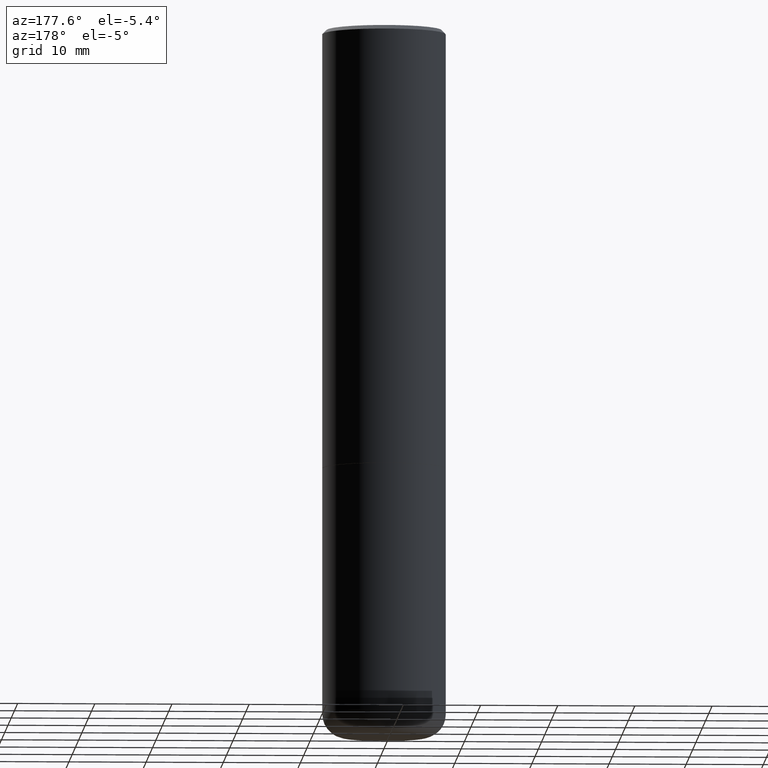
[diagram: clean part render]
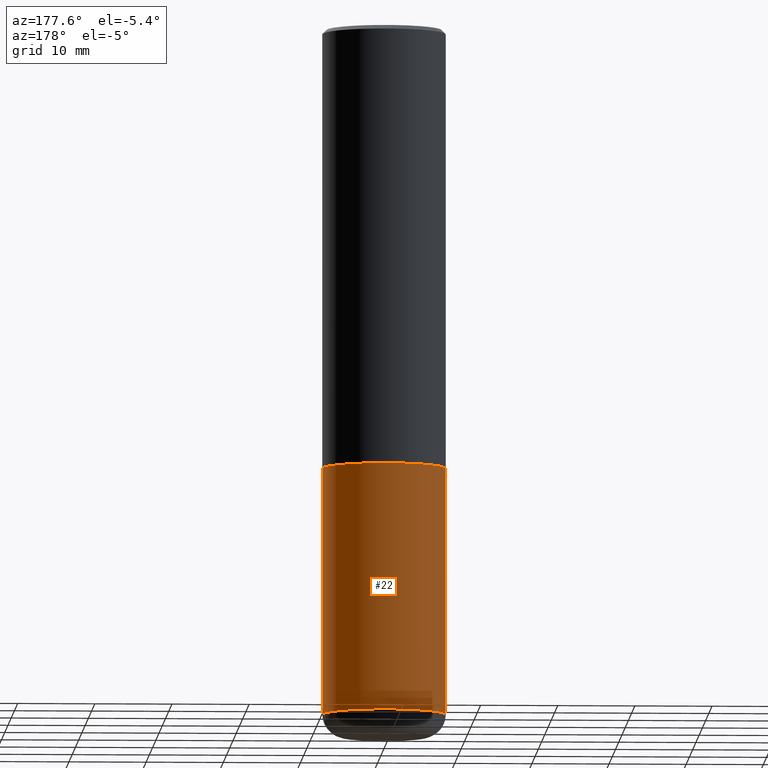
[diagram: same view with one face highlighted and labeled with its STEP entity id]
A machine part, auxiliary view. The second image highlights one B-rep face of the part: STEP entity #22.
In plain terms, the highlighted cylindrical surface (partial cylindrical patch) has radius 7.9997 mm, axis along (-0, 0, 1).
Its self-contained STEP definition (entity closure, byte-faithful):
#12 = EDGE_CURVE ( 'NONE', #378, #353, #68, .T. ) ;
#22 = ADVANCED_FACE ( 'NONE', ( #214 ), #352, .T. ) ;
#29 = ORIENTED_EDGE ( 'NONE', *, *, #106, .T. ) ;
#35 = DIRECTION ( 'NONE',  ( 1.000000000000000000, -6.982962677686263555E-15, 0.000000000000000000 ) ) ;
#44 = DIRECTION ( 'NONE',  ( -2.445468806185136877E-29, 3.491481338843145188E-15, 1.000000000000000000 ) ) ;
#55 = VERTEX_POINT ( 'NONE', #218 ) ;
#66 = DIRECTION ( 'NONE',  ( -2.445468806185136877E-29, 3.491481338843145188E-15, 1.000000000000000000 ) ) ;
#68 = CIRCLE ( 'NONE', #141, 0.3149500000000000077 ) ;
#71 = DIRECTION ( 'NONE',  ( -2.445468806185136597E-29, 3.491481338843145583E-15, 1.000000000000000000 ) ) ;
#87 = VECTOR ( 'NONE', #44, 39.37007874015748143 ) ;
#98 = CARTESIAN_POINT ( 'NONE',  ( 0.000000000000000000, 0.000000000000000000, 0.000000000000000000 ) ) ;
#104 = CARTESIAN_POINT ( 'NONE',  ( -0.3149500000000000077, -7.796488447491823147E-15, -2.243999999999999773 ) ) ;
#106 = EDGE_CURVE ( 'NONE', #414, #55, #242, .T. ) ;
#107 = VECTOR ( 'NONE', #66, 39.37007874015748143 ) ;
#125 = EDGE_CURVE ( 'NONE', #55, #353, #220, .T. ) ;
#139 = CARTESIAN_POINT ( 'NONE',  ( 0.3149499999999998967, -1.443308555850978615E-14, -3.503899999999999793 ) ) ;
#141 = AXIS2_PLACEMENT_3D ( 'NONE', #189, #280, #187 ) ;
#166 = CARTESIAN_POINT ( 'NONE',  ( 8.568678149992099474E-29, -1.223380146317249786E-14, -3.503899999999999793 ) ) ;
#168 = AXIS2_PLACEMENT_3D ( 'NONE', #98, #71, #277 ) ;
#187 = DIRECTION ( 'NONE',  ( 1.000000000000000000, -6.982962677686266711E-15, 0.000000000000000000 ) ) ;
#189 = CARTESIAN_POINT ( 'NONE',  ( 5.487632001079445967E-29, -7.834884124364017250E-15, -2.243999999999999773 ) ) ;
#206 = ORIENTED_EDGE ( 'NONE', *, *, #355, .F. ) ;
#214 = FACE_OUTER_BOUND ( 'NONE', #235, .T. ) ;
#218 = CARTESIAN_POINT ( 'NONE',  ( -0.3149499999999998967, -9.995947116896063452E-15, -3.503899999999999793 ) ) ;
#219 = ORIENTED_EDGE ( 'NONE', *, *, #125, .T. ) ;
#220 = LINE ( 'NONE', #287, #107 ) ;
#228 = CARTESIAN_POINT ( 'NONE',  ( 0.3149500000000000077, -2.199284095337289871E-15, 1.535751875536930130E-29 ) ) ;
#235 = EDGE_LOOP ( 'NONE', ( #29, #219, #349, #206 ) ) ;
#242 = CIRCLE ( 'NONE', #303, 0.3149500000000000077 ) ;
#256 = DIRECTION ( 'NONE',  ( -2.445468806185136597E-29, 3.491481338843145583E-15, 1.000000000000000000 ) ) ;
#277 = DIRECTION ( 'NONE',  ( 1.000000000000000000, -6.982962677686266711E-15, 4.876176775795936353E-29 ) ) ;
#280 = DIRECTION ( 'NONE',  ( -2.445468806185136597E-29, 3.491481338843145583E-15, 1.000000000000000000 ) ) ;
#286 = CARTESIAN_POINT ( 'NONE',  ( 0.3149500000000000077, -1.003416821970130712E-14, -2.243999999999999773 ) ) ;
#287 = CARTESIAN_POINT ( 'NONE',  ( -0.3149500000000000077, 2.237854346276435590E-15, -1.549218606675782676E-29 ) ) ;
#303 = AXIS2_PLACEMENT_3D ( 'NONE', #166, #256, #35 ) ;
#349 = ORIENTED_EDGE ( 'NONE', *, *, #12, .F. ) ;
#352 = CYLINDRICAL_SURFACE ( 'NONE', #168, 0.3149500000000000077 ) ;
#353 = VERTEX_POINT ( 'NONE', #104 ) ;
#355 = EDGE_CURVE ( 'NONE', #414, #378, #417, .T. ) ;
#378 = VERTEX_POINT ( 'NONE', #286 ) ;
#414 = VERTEX_POINT ( 'NONE', #139 ) ;
#417 = LINE ( 'NONE', #228, #87 ) ;